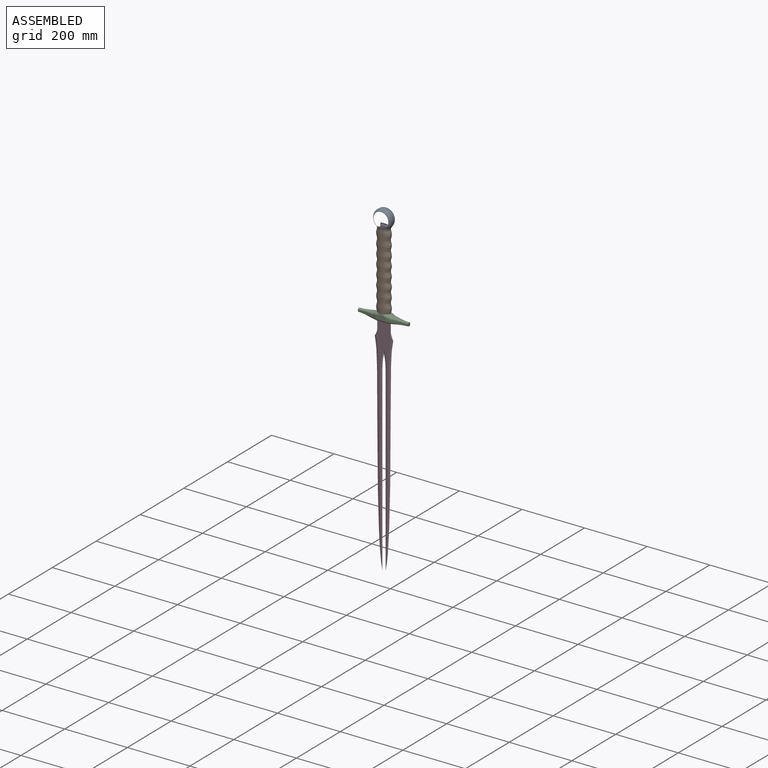
[diagram: assembled view]
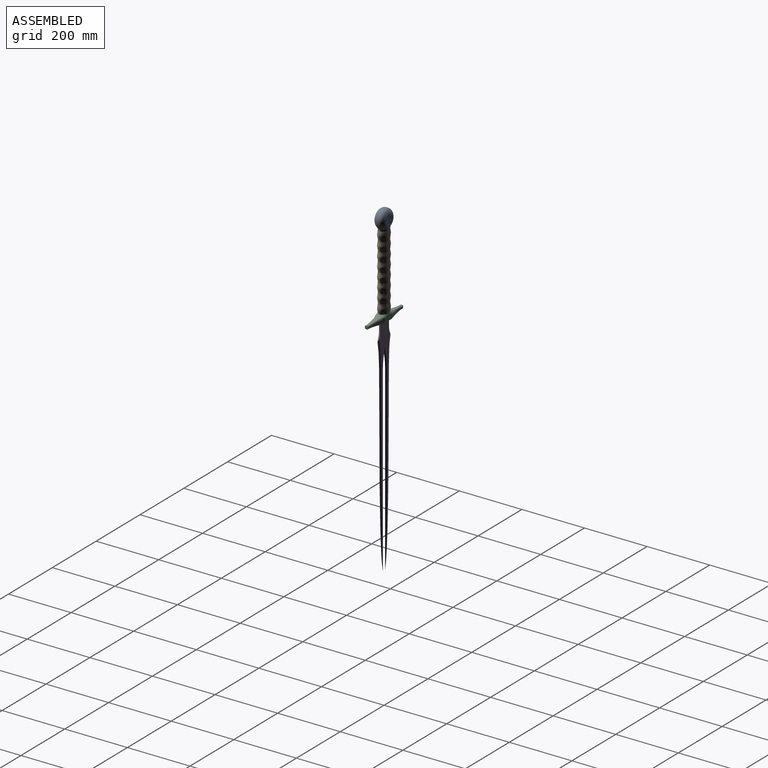
[diagram: assembled view, second angle]
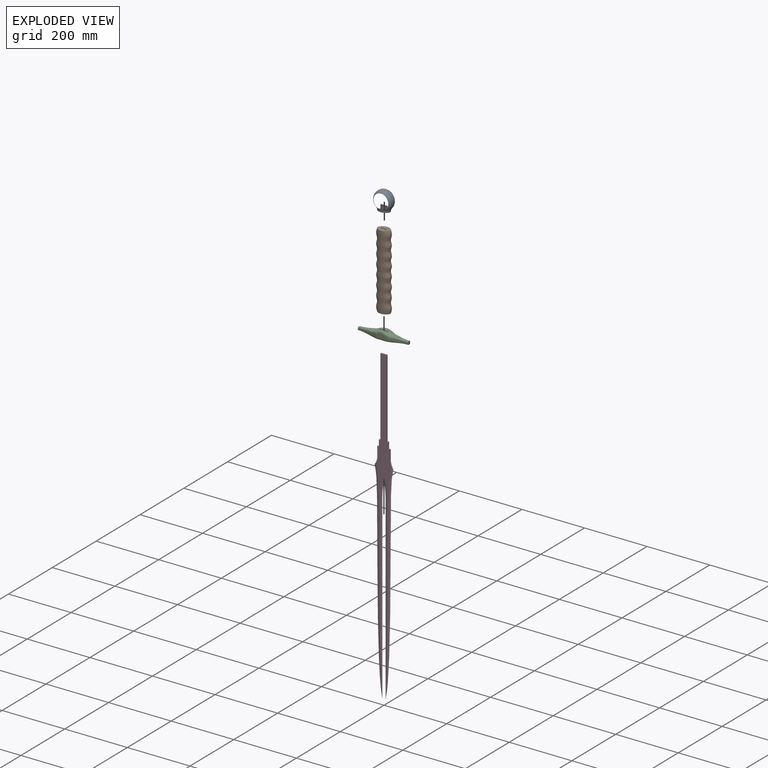
[diagram: exploded view]
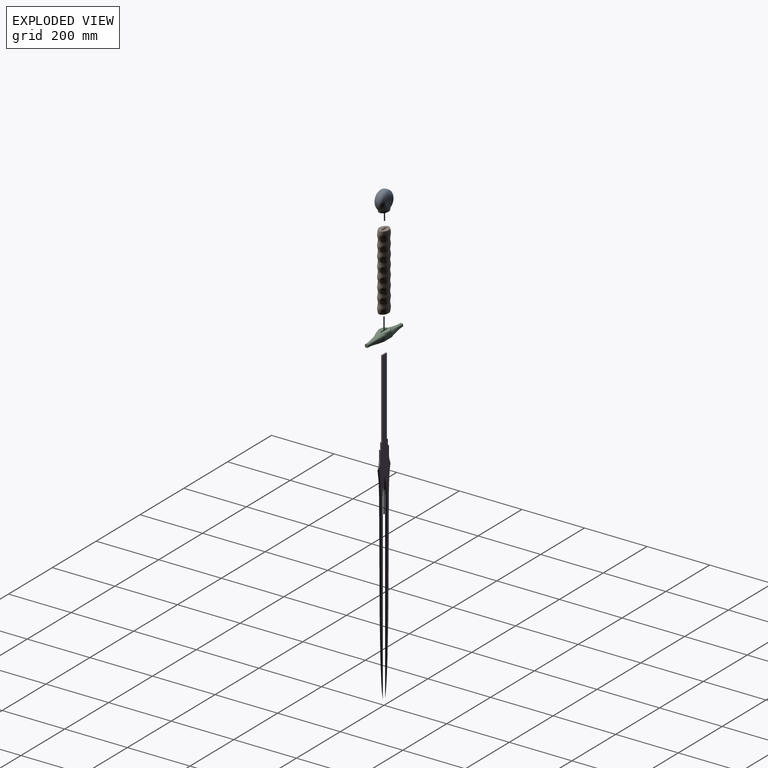
[diagram: exploded view, second angle]
ASSEMBLY  parts=4 mates=3
PART A: 79 faces, bbox 127.3x95.3x124.8 mm
  f0: plane 41.1x29.26mm, normal (0,0,-1), area 815.5mm2, adj f1,f3,f4,f5,f6,f53
  f1: plane 15x4mm, normal (-1,0,0), area 60mm2, adj f0,f2,f3,f5
  f2: plane 20x4mm, normal (0,0,-1), area 80mm2, adj f1,f3,f4,f5
  f3: plane 20x15mm, normal (0,1,0), area 300mm2, adj f0,f1,f2,f4
  f4: plane 15x4mm, normal (1,0,0), area 60mm2, adj f0,f2,f3,f5
  f5: plane 20x15mm, normal (0,-1,0), area 300mm2, adj f0,f1,f2,f4
  f6: revolved ~29x24.2mm, area 173.4mm2, adj f0,f7,f46,f47,f48,f49,f50,f51
  f7: bspline ~13.84x6.91mm, area 61.3mm2, adj f6,f8,f45,f46
  f8: bspline ~13.84x6.91mm, area 61.3mm2, adj f7,f9,f45,f53
  f9: bspline ~6.96x3.39mm, area 3.4mm2, adj f8,f10,f44,f53
  f10: bspline ~15.14x13.63mm, area 133.5mm2, adj f9,f11,f43,f53
  f11: bspline ~9.29x6.59mm, area 2.5mm2, adj f10,f12,f53
  f12: cylinder r=30mm len=60mm, axis (0,1,0), area 590.8mm2, adj f11,f13,f14,f42,f43,f48,f49
  f13: revolved ~0.07x0.04mm, area 0mm2, adj f12
  f14: torus R=16mm, axis (0,1,0), area 1818.3mm2, adj f12,f15,f41,f50
  f15: cone r=30mm half-angle=55deg, axis (0,-1,0), area 63mm2, adj f14,f16,f40,f51
  f16: torus R=15.59mm, axis (0,-1,0), area 1006mm2, adj f15,f17,f39,f52
  f17: plane 31.17x31.17mm, normal (0,1,0), area 368.9mm2, adj f16,f18,f20,f21,f22,f23,f24,f25
  f18: plane 6x0.5mm, normal (0,0.71,-0.71), area 4mm2, adj f17,f19,f20,f38
  f19: plane 26x26mm, normal (0,1,0), area 324mm2, adj f18,f20,f21,f22,f23,f24,f25,f26
  f20: plane 4.67x4mm, normal (0.42,0.71,-0.57), area 3.8mm2, adj f17,f18,f19,f21
  f21: plane 14x0.5mm, normal (-0.71,0.71,0), area 9.2mm2, adj f17,f19,f20,f22
  f22: plane 4.67x4mm, normal (0.42,0.71,0.57), area 3.8mm2, adj f17,f19,f21,f23
  f23: plane 6x0.5mm, normal (0,0.71,0.71), area 4mm2, adj f17,f19,f22,f24
  f24: plane 6x0.5mm, normal (-0.71,0.71,0), area 4mm2, adj f17,f19,f23,f25
  f25: plane 4.67x4mm, normal (-0.57,0.71,-0.42), area 3.8mm2, adj f17,f19,f24,f26
  f26: plane 14x0.5mm, normal (0,0.71,0.71), area 9.2mm2, adj f17,f19,f25,f27
  f27: plane 4.67x4mm, normal (0.57,0.71,-0.42), area 3.8mm2, adj f17,f19,f26,f28
  f28: plane 6x0.5mm, normal (0.71,0.71,0), area 4mm2, adj f17,f19,f27,f29
  f29: plane 6x0.5mm, normal (0,0.71,0.71), area 4mm2, adj f17,f19,f28,f30
  f30: plane 4.67x4mm, normal (-0.42,0.71,0.57), area 3.8mm2, adj f17,f19,f29,f31
  f31: plane 14x0.5mm, normal (0.71,0.71,0), area 9.2mm2, adj f17,f19,f30,f32
  f32: plane 4.67x4mm, normal (-0.42,0.71,-0.57), area 3.8mm2, adj f17,f19,f31,f33
  f33: plane 6x0.5mm, normal (0,0.71,-0.71), area 4mm2, adj f17,f19,f32,f34
  f34: plane 6x0.5mm, normal (0.71,0.71,0), area 4mm2, adj f17,f19,f33,f35
  f35: plane 4.67x4mm, normal (0.57,0.71,0.42), area 3.8mm2, adj f17,f19,f34,f36
  f36: plane 14x0.5mm, normal (0,0.71,-0.71), area 9.2mm2, adj f17,f19,f35,f37
  f37: plane 4.67x4mm, normal (-0.57,0.71,0.42), area 3.8mm2, adj f17,f19,f36,f38
  f38: plane 6x0.5mm, normal (-0.71,0.71,0), area 4mm2, adj f17,f18,f19,f37
  f39: bspline ~13.84x6.91mm, area 61.3mm2, adj f16,f40,f52,f53
  f40: bspline ~7.23x4.13mm, area 3.4mm2, adj f15,f39,f41,f53
  f41: bspline ~15.14x13.62mm, area 133.5mm2, adj f14,f40,f42,f53
  f42: bspline ~9.29x6.59mm, area 2.5mm2, adj f12,f41,f53
  f43: torus R=16mm, axis (0,-1,0), area 1818.3mm2, adj f10,f12,f44,f47
  f44: cone r=20mm half-angle=55deg, axis (0,1,0), area 63mm2, adj f9,f43,f45,f46
  f45: torus R=15.59mm, axis (0,-1,0), area 53.9mm2, adj f7,f8,f44
  f46: bspline ~7.23x4.13mm, area 3.4mm2, adj f6,f7,f44,f47
  f47: bspline ~15.14x13.62mm, area 133.5mm2, adj f6,f43,f46,f48
  f48: bspline ~9.29x6.59mm, area 2.5mm2, adj f6,f12,f47
  f49: bspline ~9.29x6.59mm, area 2.5mm2, adj f6,f12,f50
  f50: bspline ~15.14x13.63mm, area 133.5mm2, adj f6,f14,f49,f51
  f51: bspline ~6.96x3.39mm, area 3.4mm2, adj f6,f15,f50,f52
  f52: bspline ~13.84x6.91mm, area 61.3mm2, adj f6,f16,f39,f51
  f53: revolved ~29x24.2mm, area 173.4mm2, adj f0,f6,f8,f9,f10,f11,f39,f40
  f54: cylinder r=30mm len=0.07mm, axis (0,1,0), area 0mm2, adj f55
  f55: revolved ~0.07x0.04mm, area 0mm2, adj f54
  f56: plane 93.52x93.52mm, normal (0,-1,0), area 368.9mm2, adj f57,f58,f59,f60,f61,f62,f63,f64
  f57: torus R=15.59mm, axis (0,-1,0), area 0mm2, adj f56
  f58: plane 6x0.5mm, normal (0,-0.71,0.71), area 4mm2, adj f56,f59,f77,f78
  f59: plane 4.67x4mm, normal (-0.42,-0.71,0.57), area 3.8mm2, adj f56,f58,f60,f78
  f60: plane 14x0.5mm, normal (0.71,-0.71,0), area 9.2mm2, adj f56,f59,f61,f78
  f61: plane 4.67x4mm, normal (-0.42,-0.71,-0.57), area 3.8mm2, adj f56,f60,f62,f78
  f62: plane 6x0.5mm, normal (0,-0.71,-0.71), area 4mm2, adj f56,f61,f63,f78
  f63: plane 6x0.5mm, normal (0.71,-0.71,0), area 4mm2, adj f56,f62,f64,f78
  f64: plane 4.67x4mm, normal (0.57,-0.71,0.42), area 3.8mm2, adj f56,f63,f65,f78
  f65: plane 14x0.5mm, normal (0,-0.71,-0.71), area 9.2mm2, adj f56,f64,f66,f78
  f66: plane 4.67x4mm, normal (-0.57,-0.71,0.42), area 3.8mm2, adj f56,f65,f67,f78
  f67: plane 6x0.5mm, normal (-0.71,-0.71,0), area 4mm2, adj f56,f66,f68,f78
  f68: plane 6x0.5mm, normal (0,-0.71,-0.71), area 4mm2, adj f56,f67,f69,f78
  f69: plane 4.67x4mm, normal (0.42,-0.71,-0.57), area 3.8mm2, adj f56,f68,f70,f78
  f70: plane 14x0.5mm, normal (-0.71,-0.71,0), area 9.2mm2, adj f56,f69,f71,f78
  f71: plane 4.67x4mm, normal (0.42,-0.71,0.57), area 3.8mm2, adj f56,f70,f72,f78
  f72: plane 6x0.5mm, normal (0,-0.71,0.71), area 4mm2, adj f56,f71,f73,f78
  f73: plane 6x0.5mm, normal (-0.71,-0.71,0), area 4mm2, adj f56,f72,f74,f78
  f74: plane 4.67x4mm, normal (-0.57,-0.71,-0.42), area 3.8mm2, adj f56,f73,f75,f78
  f75: plane 14x0.5mm, normal (0,-0.71,0.71), area 9.2mm2, adj f56,f74,f76,f78
  f76: plane 4.67x4mm, normal (0.57,-0.71,-0.42), area 3.8mm2, adj f56,f75,f77,f78
  f77: plane 6x0.5mm, normal (0.71,-0.71,0), area 4mm2, adj f56,f58,f76,f78
  f78: plane 26x26mm, normal (0,-1,0), area 324mm2, adj f58,f59,f60,f61,f62,f63,f64,f65
PART B: 7 faces, bbox 46.1x30.3x240.1 mm
  f0: plane 40.05x29.05mm, normal (0,0,-1), area 814.7mm2, adj f2,f3,f4,f5,f6
  f1: plane 40.05x29.05mm, normal (0,0,1), area 814.6mm2, adj f2,f3,f4,f5,f6
  f2: bspline ~240x46.02mm, area 27800.1mm2, adj f0,f1
  f3: plane 240x4mm, normal (1,0,0), area 960mm2, adj f0,f1,f5,f6
  f4: plane 240x4mm, normal (-1,0,0), area 960mm2, adj f0,f1,f5,f6
  f5: plane 240x20mm, normal (0,-1,0), area 4800mm2, adj f0,f1,f3,f4
  f6: plane 240x20mm, normal (0,1,0), area 4800mm2, adj f0,f1,f3,f4
PART C: 97 faces, bbox 179.2x30.4x25.1 mm
  f0: plane 59.4x16mm, normal (0,0,1), area 682.5mm2, adj f19,f20,f21,f22,f27,f28,f29,f30
  f1: plane 40.1x29.01mm, normal (0,0,-1), area 774mm2, adj f10,f21,f22,f23,f26
  f2: plane 10.1x10.1mm, normal (1,0,0), area 92.3mm2, adj f4,f7,f11,f13,f62,f65,f82,f87
  f3: plane 10.1x10.1mm, normal (-1,0,0), area 92.3mm2, adj f5,f6,f15,f17,f57,f61,f77,f92
  f4: cylinder r=252.5mm len=49.71mm, axis (0,1,0), area 322.8mm2, adj f2,f62,f63,f64,f65,f66
  f5: cylinder r=252.5mm len=49.71mm, axis (0,1,0), area 322.8mm2, adj f3,f57,f58,f59,f60,f61
  f6: cylinder r=252.5mm len=48.47mm, axis (0,1,0), area 344.1mm2, adj f3,f75,f77,f78,f79,f92,f93,f94
  f7: cylinder r=252.5mm len=48.47mm, axis (0,1,0), area 344.1mm2, adj f2,f76,f82,f83,f84,f87,f88,f89
  f8: plane 30.01x12.65mm, normal (0,-1,0), area 357.4mm2, adj f14,f18,f34,f40,f43
  f9: plane 30.01x12.65mm, normal (0,1,0), area 357.4mm2, adj f12,f16,f29,f51,f53
  f10: bspline ~58.55x29.93mm, area 645.6mm2, adj f1,f38,f39,f40,f42,f43,f44,f45
  f11: cylinder r=201.25mm len=60.49mm, axis (0,0,-1), area 363.7mm2, adj f2,f12,f31,f47,f48,f62,f82
  f12: cylinder r=15mm len=10.14mm, axis (0,0,-1), area 44.8mm2, adj f9,f11,f30,f49
  f13: cylinder r=201.25mm len=60.49mm, axis (0,0,-1), area 363.1mm2, adj f2,f14,f36,f37,f38,f65,f87
  f14: cylinder r=15mm len=9.95mm, axis (0,0,-1), area 44.1mm2, adj f8,f13,f35,f39
  f15: cylinder r=201.25mm len=60.49mm, axis (0,0,-1), area 363.1mm2, adj f3,f16,f27,f55,f56,f57,f92
  f16: cylinder r=15mm len=9.95mm, axis (0,0,-1), area 44.1mm2, adj f9,f15,f28,f54
  f17: cylinder r=201.25mm len=60.49mm, axis (0,0,-1), area 363.7mm2, adj f3,f18,f32,f45,f46,f61,f77
  f18: cylinder r=15mm len=10.14mm, axis (0,0,-1), area 44.8mm2, adj f8,f17,f33,f44
  f19: plane 5x4mm, normal (-1,0,0), area 20mm2, adj f0,f21,f22,f24
  f20: plane 5x4mm, normal (1,0,0), area 20mm2, adj f0,f21,f22,f25
  f21: plane 40x25mm, normal (0,-1,0), area 800mm2, adj f0,f1,f19,f20,f23,f24,f25,f26
  f22: plane 40x25mm, normal (0,1,0), area 800mm2, adj f0,f1,f19,f20,f23,f24,f25,f26
  f23: plane 20x4mm, normal (-1,0,0), area 80mm2, adj f1,f21,f22,f24
  f24: plane 5x4mm, normal (0,0,1), area 20mm2, adj f19,f21,f22,f23
  f25: plane 5x4mm, normal (0,0,1), area 20mm2, adj f20,f21,f22,f26
  f26: plane 20x4mm, normal (1,0,0), area 80mm2, adj f1,f21,f22,f25
  f27: torus R=208.25mm, axis (0,0,-1), area 226.6mm2, adj f0,f15,f28,f58
  f28: torus R=8mm, axis (0,0,-1), area 41.8mm2, adj f0,f16,f27,f29
  f29: cylinder r=7mm len=30mm, axis (-1,0,0), area 329.9mm2, adj f0,f9,f28,f30
  f30: torus R=8mm, axis (0,0,-1), area 41.8mm2, adj f0,f12,f29,f31
  f31: torus R=208.25mm, axis (0,0,-1), area 226.6mm2, adj f0,f11,f30,f63
  f32: torus R=208.25mm, axis (0,0,-1), area 226.6mm2, adj f0,f17,f33,f60
  f33: torus R=8mm, axis (0,0,-1), area 41.8mm2, adj f0,f18,f32,f34
  f34: cylinder r=7mm len=30mm, axis (1,0,0), area 329.9mm2, adj f0,f8,f33,f35
  f35: torus R=8mm, axis (0,0,-1), area 41.8mm2, adj f0,f14,f34,f36
  f36: torus R=208.25mm, axis (0,0,-1), area 226.6mm2, adj f0,f13,f35,f66
  f37: torus R=208.25mm, axis (0,0,-1), area 107.3mm2, adj f13,f74,f88
  f38: bspline ~14.3x10.16mm, area 75.5mm2, adj f10,f13,f39,f74
  f39: bspline ~7.27x6.45mm, area 27mm2, adj f10,f14,f38,f40
  f40: bspline ~29.81x6.06mm, area 58.9mm2, adj f8,f10,f39,f41
  f41: bspline ~3.4x1.23mm, area 0.7mm2, adj f40,f42,f43
  f42: bspline ~1.62x1.36mm, area 0.5mm2, adj f10,f41,f43
  f43: bspline ~7.76x6.97mm, area 30.5mm2, adj f8,f10,f41,f42,f44
  f44: bspline ~8.04x6.83mm, area 27.5mm2, adj f10,f18,f43,f45
  f45: bspline ~13.47x9.86mm, area 74.8mm2, adj f10,f17,f44,f72
  f46: torus R=208.25mm, axis (0,0,-1), area 107.1mm2, adj f17,f72,f78
  f47: torus R=208.25mm, axis (0,0,-1), area 107.1mm2, adj f11,f69,f83
  f48: bspline ~13.47x9.86mm, area 74.8mm2, adj f10,f11,f49,f69
  f49: bspline ~8.04x6.83mm, area 27.5mm2, adj f10,f12,f48,f51
  f50: bspline ~1.62x1.36mm, area 0.4mm2, adj f10,f51,f52
  f51: bspline ~7.74x6.96mm, area 30.5mm2, adj f9,f10,f49,f50,f52
  f52: bspline ~3.4x1.23mm, area 0.7mm2, adj f50,f51,f53
  f53: bspline ~29.81x6.06mm, area 58.8mm2, adj f9,f10,f52,f54
  f54: bspline ~7.27x6.45mm, area 27mm2, adj f10,f16,f53,f55
  f55: bspline ~14.3x10.16mm, area 75.5mm2, adj f10,f15,f54,f67
  f56: torus R=208.25mm, axis (0,0,-1), area 107.3mm2, adj f15,f67,f93
  f57: bspline ~42.06x5.67mm, area 104.8mm2, adj f3,f5,f15,f58
  f58: bspline ~30.61x7.36mm, area 90.4mm2, adj f5,f27,f57,f59
  f59: cylinder r=3mm len=8.33mm, axis (0,1,0), area 5mm2, adj f0,f5,f58,f60
  f60: bspline ~30.61x7.36mm, area 90.4mm2, adj f5,f32,f59,f61
  f61: bspline ~42.08x5.67mm, area 104.8mm2, adj f3,f5,f17,f60
  f62: bspline ~42.08x5.67mm, area 104.8mm2, adj f2,f4,f11,f63
  f63: bspline ~30.61x7.36mm, area 90.4mm2, adj f4,f31,f62,f64
  f64: cylinder r=3mm len=8.33mm, axis (0,1,0), area 5mm2, adj f0,f4,f63,f66
  f65: bspline ~42.06x5.67mm, area 104.8mm2, adj f2,f4,f13,f66
  f66: bspline ~30.61x7.36mm, area 90.4mm2, adj f4,f36,f64,f65
  f67: bspline ~8.03x6.83mm, area 35.2mm2, adj f55,f56,f68,f94,f95
  f68: bspline ~7.81x4.59mm, area 6.7mm2, adj f10,f67,f96
  f69: bspline ~8.07x6.83mm, area 35.5mm2, adj f47,f48,f70,f84,f85
  f70: bspline ~8.09x4.82mm, area 6.7mm2, adj f10,f69,f86
  f71: bspline ~8.09x4.82mm, area 6.7mm2, adj f10,f72,f81
  f72: bspline ~8.07x6.83mm, area 35.5mm2, adj f45,f46,f71,f79,f80
  f73: bspline ~7.81x4.59mm, area 6.7mm2, adj f10,f74,f91
  f74: bspline ~8.03x6.83mm, area 35.2mm2, adj f37,f38,f73,f89,f90
  f75: bspline ~17.82x7.82mm, area 61.7mm2, adj f6,f10,f80,f81,f95,f96
  f76: bspline ~18.37x8.11mm, area 61.7mm2, adj f7,f10,f85,f86,f90,f91
  f77: bspline ~42.04x5.67mm, area 104.8mm2, adj f3,f6,f17,f78
  f78: bspline ~29.4x7.04mm, area 86.6mm2, adj f6,f46,f77,f79
  f79: bspline ~4.62x2.53mm, area 1.9mm2, adj f6,f72,f78,f80
  f80: bspline ~1.58x1.34mm, area 0.7mm2, adj f72,f75,f79,f81
  f81: bspline ~5.3x2.05mm, area 1.7mm2, adj f71,f75,f80
  f82: bspline ~42.04x5.67mm, area 104.8mm2, adj f2,f7,f11,f83
  f83: bspline ~29.4x7.04mm, area 86.6mm2, adj f7,f47,f82,f84
  f84: bspline ~5.25x2.54mm, area 1.9mm2, adj f7,f69,f83,f85
  f85: bspline ~1.58x1.34mm, area 0.7mm2, adj f69,f76,f84,f86
  f86: bspline ~5.3x2.05mm, area 1.7mm2, adj f70,f76,f85
  f87: bspline ~42.06x5.67mm, area 104.8mm2, adj f2,f7,f13,f88
  f88: bspline ~29.87x7.13mm, area 86.6mm2, adj f7,f37,f87,f89
  f89: bspline ~3.14x1.98mm, area 1.9mm2, adj f7,f74,f88,f90
  f90: bspline ~1.73x1.36mm, area 0.7mm2, adj f74,f76,f89,f91
  f91: bspline ~5.29x2.05mm, area 1.7mm2, adj f73,f76,f90
  f92: bspline ~42.06x5.67mm, area 104.8mm2, adj f3,f6,f15,f93
  f93: bspline ~29.87x7.13mm, area 86.6mm2, adj f6,f56,f92,f94
  f94: bspline ~3.14x1.98mm, area 1.9mm2, adj f6,f67,f93,f95
  f95: bspline ~1.73x1.36mm, area 0.7mm2, adj f67,f75,f94,f96
  f96: bspline ~5.29x2.05mm, area 1.7mm2, adj f68,f75,f95
PART D: 27 faces, bbox 71x6.7x1004.1 mm
  f0: cylinder r=40mm len=26mm, axis (0,1,0), area 96.5mm2, adj f12,f13,f14,f15,f16
  f1: cylinder r=40mm len=26mm, axis (0,1,0), area 96.6mm2, adj f2,f13,f14,f17,f18
  f2: plane 30x4mm, normal (-1,0,0), area 120mm2, adj f1,f3,f13,f14
  f3: plane 5x4mm, normal (0,0,-1), area 20mm2, adj f2,f4,f13,f14
  f4: plane 20x4mm, normal (-1,0,0), area 80mm2, adj f3,f5,f13,f14
  f5: plane 5x4mm, normal (0,0,-1), area 20mm2, adj f4,f6,f13,f14
  f6: plane 250x4mm, normal (-1,0,0), area 1000mm2, adj f5,f7,f13,f14
  f7: plane 20x4mm, normal (0,0,-1), area 80mm2, adj f6,f8,f13,f14
  f8: plane 250x4mm, normal (1,0,0), area 1000mm2, adj f7,f9,f13,f14
  f9: plane 5x4mm, normal (0,0,-1), area 20mm2, adj f8,f10,f13,f14
  f10: plane 20x4mm, normal (1,0,0), area 80mm2, adj f9,f11,f13,f14
  f11: plane 5x4mm, normal (0,0,-1), area 20mm2, adj f10,f12,f13,f14
  f12: plane 30x4mm, normal (1,0,0), area 120mm2, adj f0,f11,f13,f14
  f13: plane 889.86x49.77mm, normal (0,-1,0), area 14648.3mm2, adj f0,f1,f2,f3,f4,f5,f6,f7
  f14: plane 889.86x49.77mm, normal (0,1,0), area 14337.6mm2, adj f0,f1,f2,f3,f4,f5,f6,f7
  f15: bspline ~700.45x35.59mm, area 3866.5mm2, adj f0,f14,f16,f25
  f16: bspline ~700.45x35.59mm, area 3866.5mm2, adj f0,f13,f15,f22
  f17: bspline ~700.45x35.59mm, area 3866.5mm2, adj f1,f14,f18,f21
  f18: bspline ~700.45x35.59mm, area 3866.5mm2, adj f1,f13,f17,f19
  f19: plane 589x7.74mm, normal (0.37,-0.93,0), area 2937.3mm2, adj f13,f18,f20,f21
  f20: cone r=185mm half-angle=68.2deg, axis (0,-1,0), area 278.6mm2, adj f13,f19,f23,f24
  f21: plane 589x7.74mm, normal (0.37,0.93,0), area 2936.8mm2, adj f14,f17,f19,f24
  f22: plane 589x7.74mm, normal (-0.37,-0.93,0), area 2936.8mm2, adj f13,f16,f23,f25
  f23: cone r=185mm half-angle=68.2deg, axis (0,-1,0), area 278.6mm2, adj f13,f20,f22,f26
  f24: cone r=185mm half-angle=68.2deg, axis (0,1,0), area 278.6mm2, adj f14,f20,f21,f26
  f25: plane 589x7.74mm, normal (-0.37,0.93,0), area 2937.3mm2, adj f14,f15,f22,f26
  f26: cone r=185mm half-angle=68.2deg, axis (0,1,0), area 278.6mm2, adj f14,f23,f24,f25
PLACE A t=(-0.05,-0.15,115.34)mm
PLACE B t=(-0.05,-0.15,-124.66)mm
PLACE C rot(axis=(-1,0,0),180deg) t=(-0.05,-0.15,-129.66)mm
PLACE D rot(axis=(-1,0,0),180deg) t=(-0.05,-0.15,-144.66)mm fixed
MATE slider C.f24 <-> D.f11  axis (0,0,-1) through (17.45,-0.15,-144.66)mm
MATE slider A.f0 <-> B.f1  axis (0,0,-1) through (-0.05,-0.15,115.34)mm
MATE slider B.f0 <-> C.f1  axis (0,0,-1) through (-0.05,-0.15,-124.66)mm
